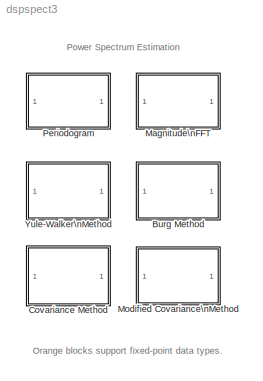
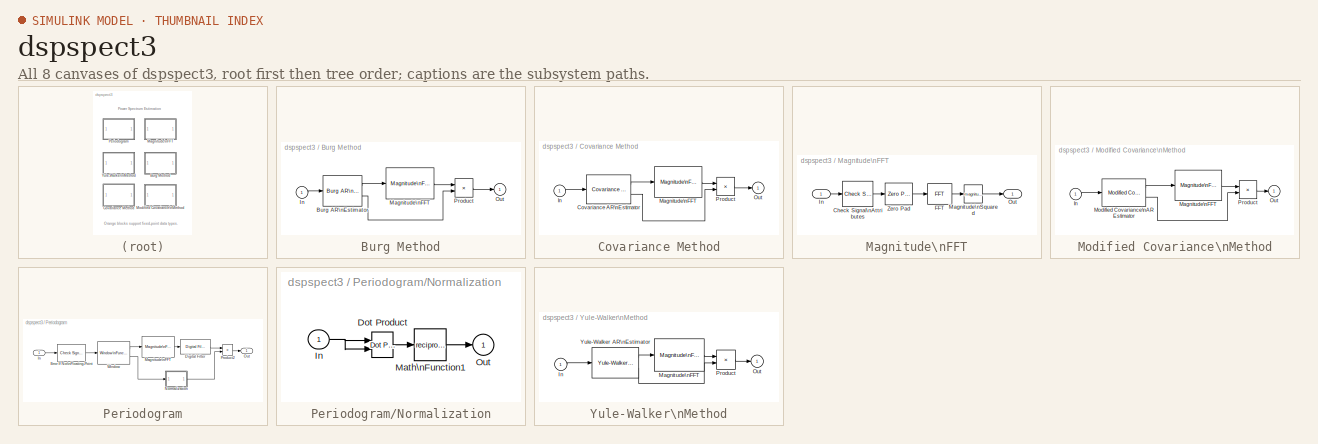
[diagram: thumbnail index - all 8 canvases of the model, root first then tree order]
MODEL dspspect3
KIND library
BLOCK [SubSystem] Burg Method
  MaskCallbackString = dspblkburgmeth2||dspblkburgmeth2|
  MaskDescription = Parametric estimation of the AR spectrum using the Burg method.
  MaskDisplay = text(-3,1.2,'Burg'); plot(-xe,0,xe,1.3,x,y)
  MaskEnableString = on,on,on,on
  MaskHelp = web(dspbhelp);
  MaskIconFrame = on
  MaskIconOpaque = on
  MaskIconRotate = none
  MaskIconUnits = autoscale
  MaskInitialization = [xe,x,y]=dspblkburgmeth2('icon');\ndspblkburgmeth2('init');\n
  MaskPromptString = Inherit estimation order from input dimensions|Estimation order:|Inherit FFT length from estimation order|FFT length:
  MaskSelfModifiable = on
  MaskStyleString = checkbox,edit,checkbox,edit
  MaskTabNameString = ,,,
  MaskToolTipString = on,on,on,on
  MaskTunableValueString = off,off,off,off
  MaskType = Burg Method
  MaskValueString = off|6|off|256
  MaskVarAliasString = ,,,
  MaskVariables = inheritOrd=@1;ord=@2;inheritFFT=@3;fftsize=@4;
  MaskVisibilityString = on,on,on,on
  Ports = [1, 1]
  TreatAsAtomicUnit = off
BLOCK [Reference] Burg Method/Burg AR\nEstimator  REF=dspparest3/Burg AR\nEstimator
  Ports = [1, 2]
  SourceBlock = dspparest3/Burg AR\nEstimator
  SourceType = Burg AR Estimator
  fcn = A
  inheritOrder = off
  ord = ord
BLOCK [Inport] Burg Method/In
  IconDisplay = Port number
BLOCK [Reference] Burg Method/Magnitude\nFFT  REF=dspspect3/Magnitude\nFFT
  Ports = [1, 1]
  ShowPortLabels = on
  SourceBlock = dspspect3/Magnitude\nFFT
  SourceType = Magnitude FFT
  fftLenInherit = off
  fftsize = fftsize
  mag_or_magsq = Magnitude squared
BLOCK [Outport] Burg Method/Out
  BusOutputAsStruct = off
  IconDisplay = Port number
  InitialOutput = 0
BLOCK [Product] Burg Method/Product
  Inputs = /*
  Ports = [2, 1]
  RndMeth = Floor
BLOCK [SubSystem] Covariance Method
  MaskCallbackString = |dspblkcovarmeth2|
  MaskDescription = Parametric estimation of the AR spectrum using the covariance method.
  MaskDisplay = text(-3,1.2,'Cov AR'); plot(-xe,0,xe,1.3,x,y)
  MaskEnableString = on,on,on
  MaskHelp = web(dspbhelp);
  MaskIconFrame = on
  MaskIconOpaque = on
  MaskIconRotate = none
  MaskIconUnits = autoscale
  MaskInitialization = [xe,x,y]=dspblkcovarmeth2('icon');\ndspblkcovarmeth2('init');\n
  MaskPromptString = Estimation order:|Inherit FFT length from estimation order|FFT length:
  MaskSelfModifiable = on
  MaskStyleString = edit,checkbox,edit
  MaskTabNameString = ,,
  MaskToolTipString = on,on,on
  MaskTunableValueString = off,on,off
  MaskType = Covariance Method
  MaskValueString = 6|off|256
  MaskVarAliasString = ,,
  MaskVariables = ord=@1;inheritFFT=@2;fftsize=@3;
  MaskVisibilityString = on,on,on
  Ports = [1, 1]
  TreatAsAtomicUnit = off
BLOCK [Reference] Covariance Method/Covariance AR\nEstimator  REF=dspparest3/Covariance AR\nEstimator
  P = ord
  Ports = [1, 2]
  ShowPortLabels = on
  SourceBlock = dspparest3/Covariance AR\nEstimator
  SourceType = Covariance AR Estimator
BLOCK [Inport] Covariance Method/In
  IconDisplay = Port number
BLOCK [Reference] Covariance Method/Magnitude\nFFT  REF=dspspect3/Magnitude\nFFT
  Ports = [1, 1]
  ShowPortLabels = on
  SourceBlock = dspspect3/Magnitude\nFFT
  SourceType = Magnitude FFT
  fftLenInherit = off
  fftsize = fftsize
  mag_or_magsq = Magnitude squared
BLOCK [Outport] Covariance Method/Out
  BusOutputAsStruct = off
  IconDisplay = Port number
  InitialOutput = 0
BLOCK [Product] Covariance Method/Product
  Inputs = /*
  Ports = [2, 1]
  RndMeth = Floor
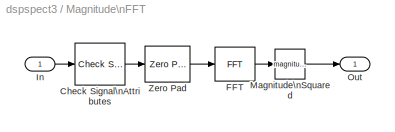
BLOCK [SubSystem] Magnitude\nFFT
  CopyFcn = dspfixptcopycallback
  MaskCallbackString = |dspblkmagfft2;|
  MaskDescription = Compute magnitude or magnitude-squared FFT of the input, with optional zero padding.
  MaskDisplay = disp(str,'texmode','on');
  MaskEnableString = on,on,on
  MaskHelp = web(dspbhelp);
  MaskIconFrame = on
  MaskIconOpaque = on
  MaskIconRotate = none
  MaskIconUnits = autoscale
  MaskInitialization = str=dspblkmagfft2('init');dspblkmagfft2('update');
  MaskPromptString = Output:|Inherit FFT length from input dimensions|FFT length:
  MaskSelfModifiable = on
  MaskStyleString = popup(Magnitude squared|Magnitude),checkbox,edit
  MaskTabNameString = ,,
  MaskToolTipString = on,on,on
  MaskTunableValueString = off,off,off
  MaskType = Magnitude FFT
  MaskValueString = Magnitude squared|off|256
  MaskVarAliasString = ,,
  MaskVariables = mag_or_magsq=@1;fftLenInherit=@2;fftsize=@3;
  MaskVisibilityString = on,on,on
  Ports = [1, 1]
  TreatAsAtomicUnit = off
BLOCK [Reference] Magnitude\nFFT/Check Signal\nAttributes  REF=dspsigattribs/Check Signal\nAttributes
  Complexity = Ignore
  DatatypeCheckMethod = Ignore
  DatatypeGeneral = Boolean
  Dimensions = Row vector (2-D)
  DimsCheckMethod = Is...
  DtypeFixedSpecific = Any fixed-point
  DtypeFloatSpecific = Any floating-point
  DtypeIntSpecific = Any integer
  Frame = Sample-based
  Ports = [1, 1]
  SampleMode = Ignore
  ShowPortLabels = on
  SigAttribCheckMethod = Matches attributes exactly
  SourceBlock = dspsigattribs/Check Signal\nAttributes
  SourceType = Check Signal Attributes
BLOCK [Reference] Magnitude\nFFT/FFT  REF=dspxfrm3/FFT
  BitRevOrder = off
  CompMethod = Table lookup
  Ports = [1, 1]
  SkipNorm = on
  SourceBlock = dspxfrm3/FFT
  SourceType = FFT
  TableOpt = Speed
  accumFracLength = 30
  accumMode = Inherit via internal rule
  accumWordLength = 32
  additionalParams = off
  allowOverrides = on
  firstCoeffFracLength = 15
  firstCoeffMode = Same word length as input
  firstCoeffWordLength = 16
  outputFracLength = 15
  outputMode = Inherit via internal rule
  outputWordLength = 16
  overflowMode = off
  prodOutputFracLength = 30
  prodOutputMode = Inherit via internal rule
  prodOutputWordLength = 32
  roundingMode = Floor
BLOCK [Inport] Magnitude\nFFT/In
  IconDisplay = Port number
BLOCK [Math] Magnitude\nFFT/Magnitude\nSquared
  Operator = magnitude^2
  OutDataTypeMode = Inherit via internal rule
  Ports = [1, 1]
  ShowAdditionalParam = on
BLOCK [Outport] Magnitude\nFFT/Out
  BusOutputAsStruct = off
  IconDisplay = Port number
BLOCK [Reference] Magnitude\nFFT/Zero Pad  REF=dspsigops/Zero Pad
  Ports = [1, 1]
  SourceBlock = dspsigops/Zero Pad
  SourceType = Zero Pad
  numOutCols = 1
  numOutRows = fftsize
  padNumOutColsSpecMethod = User-specified
  padNumOutRowsSpecMethod = User-specified
  padSigAt = End
  trunc_flag = None
  zpadAlong = Columns
BLOCK [SubSystem] Modified Covariance\nMethod
  MaskCallbackString = |dspblkmodcovmeth2|
  MaskDescription = Parametric estimation of the AR spectrum using the modified covariance method.
  MaskDisplay = text(-3,1.2,'MCov AR'); plot(-xe,0,xe,1.3,x,y)
  MaskEnableString = on,on,on
  MaskHelp = web(dspbhelp);
  MaskIconFrame = on
  MaskIconOpaque = on
  MaskIconRotate = none
  MaskIconUnits = autoscale
  MaskInitialization = [xe,x,y]=dspblkmodcovmeth2('icon');\ndspblkmodcovmeth2('init');
  MaskPromptString = Estimation order:|Inherit FFT length from estimation order|FFT length:
  MaskSelfModifiable = on
  MaskStyleString = edit,checkbox,edit
  MaskTabNameString = ,,
  MaskToolTipString = on,on,on
  MaskTunableValueString = off,on,off
  MaskType = Modified Covariance Method
  MaskValueString = 6|off|256
  MaskVarAliasString = ,,
  MaskVariables = ord=@1;inheritFFT=@2;fftsize=@3;
  MaskVisibilityString = on,on,on
  Ports = [1, 1]
  TreatAsAtomicUnit = off
BLOCK [Inport] Modified Covariance\nMethod/In
  IconDisplay = Port number
BLOCK [Reference] Modified Covariance\nMethod/Magnitude\nFFT  REF=dspspect3/Magnitude\nFFT
  Ports = [1, 1]
  ShowPortLabels = on
  SourceBlock = dspspect3/Magnitude\nFFT
  SourceType = Magnitude FFT
  fftLenInherit = off
  fftsize = fftsize
  mag_or_magsq = Magnitude squared
BLOCK [Reference] Modified Covariance\nMethod/Modified Covariance\nAR Estimator  REF=dspparest3/Modified Covariance\nAR Estimator
  P = ord
  Ports = [1, 2]
  ShowPortLabels = on
  SourceBlock = dspparest3/Modified Covariance\nAR Estimator
  SourceType = Modified Covariance AR Estimator
BLOCK [Outport] Modified Covariance\nMethod/Out
  BusOutputAsStruct = off
  IconDisplay = Port number
  InitialOutput = 0
BLOCK [Product] Modified Covariance\nMethod/Product
  Inputs = /*
  Ports = [2, 1]
  RndMeth = Floor
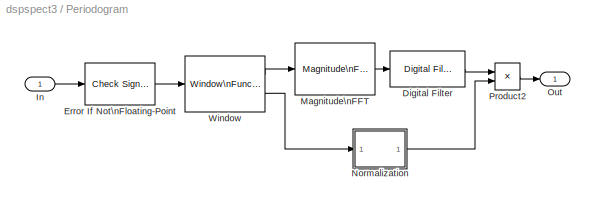
BLOCK [SubSystem] Periodogram
  MaskCallbackString = dspblkshorttimefft2||||dspblkshorttimefft2||
  MaskDescription = Nonparametric spectral estimation using the Periodogram method.
  MaskDisplay = text(-3,1.15,'Periodogram');\nplot((-xe),0,xe,1.3,x,y)\n
  MaskEnableString = on,off,off,on,on,on,on
  MaskHelp = web(dspbhelp);
  MaskIconFrame = on
  MaskIconOpaque = on
  MaskIconRotate = none
  MaskIconUnits = autoscale
  MaskInitialization = [x,y,xe]=dspblkshorttimefft2('icon');\ndspblkshorttimefft2('init');\n
  MaskPromptString = Window type:|Stopband attenuation in dB:|Beta:|Window sampling:|Inherit FFT length from input dimensions|FFT length:|Number of spectral averages:
  MaskSelfModifiable = on
  MaskStyleString = popup(Bartlett|Blackman|Boxcar|Chebyshev|Hamming|Hann|Hanning|Kaiser|Triang),edit,edit,popup(Symmetric|Periodic),checkbox,edit,edit
  MaskTabNameString = ,,,,,,
  MaskToolTipString = on,on,on,on,on,on,on
  MaskTunableValueString = on,on,on,on,off,off,off
  MaskType = Periodogram
  MaskValueString = Hamming|50|5|Symmetric|off|256|4
  MaskVarAliasString = ,,,,,,
  MaskVariables = wintype=@1;Rs=@2;beta=@3;winsamp=@4;inheritFFT=@5;fftsize=@6;navg=@7;
  MaskVisibilityString = on,on,on,on,on,on,on
  Ports = [1, 1]
  TreatAsAtomicUnit = off
BLOCK [Reference] Periodogram/Digital Filter  REF=dsparch4/Digital Filter
  AllPoleFiltStruct = Direct form
  BiQuadCoeffs = [1 0.3 0.4 1 0.1 0.2]
  CoeffSource = Specify via dialog
  DenCoeffs = [1 0.1]
  FIRFiltStruct = Direct form
  FiltPerSampPopup = One filter per frame
  IC = 0
  ICden = 0
  ICnum = 0
  IIRFiltStruct = Direct form II transposed
  LatticeCoeffs = [0.2 0.4]
  NumCoeffs = ones(navg,1)/navg
  Ports = [1, 1]
  SourceBlock = dsparch4/Digital Filter
  SourceType = Digital Filter
  TypePopup = FIR (all zeros)
  accumFracLength = 30
  accumMode = Same as product output
  accumWordLength = 32
  additionalParams = off
  allowOverrides = on
  denIgnore = on
  firstCoeffFracLength = 15
  firstCoeffMode = Same as input
  firstCoeffWordLength = 16
  memoryFracLength = 15
  memoryMode = Same as accumulator
  memoryWordLength = 16
  outputFracLength = 15
  outputMode = Same as accumulator
  outputWordLength = 16
  overflowMode = off
  prodOutputFracLength = 30
  prodOutputMode = Same as input
  prodOutputWordLength = 32
  roundingMode = Floor
  secondCoeffFracLength = 15
  secondCoeffMode = Same as numerator
  secondCoeffWordLength = 16
  showAcc = off
  showCoeff = off
  showMem = off
  showMpy = off
  showOut = off
  thirdCoeffFracLength = 15
  thirdCoeffMode = Same as input
  thirdCoeffWordLength = 16
BLOCK [Reference] Periodogram/Error If Not\nFloating-Point  REF=dspsigattribs/Check Signal\nAttributes
  Complexity = Ignore
  DatatypeCheckMethod = Is...
  DatatypeGeneral = Floating-point
  Dimensions = 1-D
  DimsCheckMethod = Ignore
  DtypeFixedSpecific = Any fixed-point
  DtypeFloatSpecific = Any floating-point
  DtypeIntSpecific = Any integer
  Frame = Ignore
  Ports = [1, 1]
  SampleMode = Ignore
  ShowPortLabels = on
  SigAttribCheckMethod = Does not match attributes exactly
  SourceBlock = dspsigattribs/Check Signal\nAttributes
  SourceType = Check Signal Attributes
BLOCK [Inport] Periodogram/In
  IconDisplay = Port number
BLOCK [Reference] Periodogram/Magnitude\nFFT  REF=dspspect3/Magnitude\nFFT
  Ports = [1, 1]
  ShowPortLabels = on
  SourceBlock = dspspect3/Magnitude\nFFT
  SourceType = Magnitude FFT
  fftLenInherit = off
  fftsize = fftsize
  mag_or_magsq = Magnitude squared
BLOCK [SubSystem] Periodogram/Normalization
  Ports = [1, 1]
  TreatAsAtomicUnit = off
BLOCK [Reference] Periodogram/Normalization/Dot Product  REF=simulink/Math\nOperations/Dot Product
  DoSatur = off
  InputSameDT = off
  LockScale = off
  OutDataType = sfix(16)
  OutScaling = 2^-10
  OutputDataTypeScalingMode = Inherit via internal rule
  Ports = [2, 1]
  RndMeth = Floor
  SourceBlock = simulink/Math\nOperations/Dot Product
  SourceType = Dot Product
BLOCK [Inport] Periodogram/Normalization/In
  IconDisplay = Port number
BLOCK [Math] Periodogram/Normalization/Math\nFunction1
  Operator = reciprocal
  Ports = [1, 1]
BLOCK [Outport] Periodogram/Normalization/Out
  BusOutputAsStruct = off
  IconDisplay = Port number
BLOCK [Outport] Periodogram/Out
  BusOutputAsStruct = off
  IconDisplay = Port number
  InitialOutput = 0
BLOCK [Product] Periodogram/Product2
  Inputs = **
  Ports = [2, 1]
  RndMeth = Floor
BLOCK [Reference] Periodogram/Window  REF=dspsigops/Window\nFunction
  N = 64
  OptParams = off
  Ports = [1, 2]
  Rs = Rs
  SourceBlock = dspsigops/Window\nFunction
  SourceType = Window Function
  UserParams = {1.0}
  UserWindow = hamming
  additionalParams = on
  allowOverrides = on
  beta = beta
  dataType = double
  firstCoeffFracLength = 15
  firstCoeffMode = Same word length as input
  firstCoeffWordLength = 16
  fracBitsMode = Best precision
  numFracBits = 15
  outputFracLength = 15
  outputMode = Same as input
  outputWordLength = 16
  overflowMode = off
  prodOutputFracLength = 15
  prodOutputMode = Same as input
  prodOutputWordLength = 16
  roundingMode = Floor
  sampmode = Continuous
  samptime = 1
  udDataType = sfix(16)
  winmode = Generate and apply window
  winsamp = Symmetric
  wintype = Hamming
  wordLen = 16
BLOCK [SubSystem] Yule-Walker\nMethod
  MaskCallbackString = dspblkyulewalkmeth2||dspblkyulewalkmeth2|
  MaskDescription = Parametric estimation of the AR spectrum using the autocorrelation (LPC) method.
  MaskDisplay = text(-3,1.2,'Yule AR'); plot(-xe,0,xe,1.3,x,y)
  MaskEnableString = on,on,on,on
  MaskHelp = web(dspbhelp);
  MaskIconFrame = on
  MaskIconOpaque = on
  MaskIconRotate = none
  MaskIconUnits = autoscale
  MaskInitialization = [xe,x,y]=dspblkyulewalkmeth2('icon');\ndspblkyulewalkmeth2('init');\n
  MaskPromptString = Inherit estimation order from input dimensions|Estimation order:|Inherit FFT length from estimation order|FFT length:
  MaskSelfModifiable = on
  MaskStyleString = checkbox,edit,checkbox,edit
  MaskTabNameString = ,,,
  MaskToolTipString = on,on,on,on
  MaskTunableValueString = off,off,off,off
  MaskType = Yule-Walker Method
  MaskValueString = off|6|off|256
  MaskVarAliasString = ,,,
  MaskVariables = inheritOrd=@1;ord=@2;inheritFFT=@3;fftsize=@4;
  MaskVisibilityString = on,on,on,on
  Ports = [1, 1]
  TreatAsAtomicUnit = off
BLOCK [Inport] Yule-Walker\nMethod/In
  IconDisplay = Port number
BLOCK [Reference] Yule-Walker\nMethod/Magnitude\nFFT  REF=dspspect3/Magnitude\nFFT
  Ports = [1, 1]
  ShowPortLabels = on
  SourceBlock = dspspect3/Magnitude\nFFT
  SourceType = Magnitude FFT
  fftLenInherit = off
  fftsize = fftsize
  mag_or_magsq = Magnitude squared
BLOCK [Outport] Yule-Walker\nMethod/Out
  BusOutputAsStruct = off
  IconDisplay = Port number
  InitialOutput = 0
BLOCK [Product] Yule-Walker\nMethod/Product
  Inputs = /*
  Ports = [2, 1]
  RndMeth = Floor
BLOCK [Reference] Yule-Walker\nMethod/Yule-Walker AR\nEstimator  REF=dspparest3/Yule-Walker AR\nEstimator
  Ports = [1, 2]
  ShowPortLabels = on
  SourceBlock = dspparest3/Yule-Walker AR\nEstimator
  SourceType = Yule-Walker AR Estimator
  inheritOrder = off
  ord = ord
  ywArOutType = A
ANNOTATION (root): Orange blocks support fixed-point data types.
ANNOTATION (root): Power Spectrum Estimation
LINE Burg Method/Burg AR\nEstimator:1 -> Burg Method/Magnitude\nFFT:1
LINE Burg Method/Burg AR\nEstimator:2 -> Burg Method/Product:2
LINE Burg Method/In:1 -> Burg Method/Burg AR\nEstimator:1
LINE Burg Method/Magnitude\nFFT:1 -> Burg Method/Product:1
LINE Burg Method/Product:1 -> Burg Method/Out:1
LINE Covariance Method/Covariance AR\nEstimator:1 -> Covariance Method/Magnitude\nFFT:1
LINE Covariance Method/Covariance AR\nEstimator:2 -> Covariance Method/Product:2
LINE Covariance Method/In:1 -> Covariance Method/Covariance AR\nEstimator:1
LINE Covariance Method/Magnitude\nFFT:1 -> Covariance Method/Product:1
LINE Covariance Method/Product:1 -> Covariance Method/Out:1
LINE Magnitude\nFFT/Check Signal\nAttributes:1 -> Magnitude\nFFT/Zero Pad:1
LINE Magnitude\nFFT/FFT:1 -> Magnitude\nFFT/Magnitude\nSquared:1
LINE Magnitude\nFFT/In:1 -> Magnitude\nFFT/Check Signal\nAttributes:1
LINE Magnitude\nFFT/Magnitude\nSquared:1 -> Magnitude\nFFT/Out:1
LINE Magnitude\nFFT/Zero Pad:1 -> Magnitude\nFFT/FFT:1
LINE Modified Covariance\nMethod/In:1 -> Modified Covariance\nMethod/Modified Covariance\nAR Estimator:1
LINE Modified Covariance\nMethod/Magnitude\nFFT:1 -> Modified Covariance\nMethod/Product:1
LINE Modified Covariance\nMethod/Modified Covariance\nAR Estimator:1 -> Modified Covariance\nMethod/Magnitude\nFFT:1
LINE Modified Covariance\nMethod/Modified Covariance\nAR Estimator:2 -> Modified Covariance\nMethod/Product:2
LINE Modified Covariance\nMethod/Product:1 -> Modified Covariance\nMethod/Out:1
LINE Periodogram/Digital Filter:1 -> Periodogram/Product2:1
LINE Periodogram/Error If Not\nFloating-Point:1 -> Periodogram/Window:1
LINE Periodogram/In:1 -> Periodogram/Error If Not\nFloating-Point:1
LINE Periodogram/Magnitude\nFFT:1 -> Periodogram/Digital Filter:1
LINE Periodogram/Normalization/Dot Product:1 -> Periodogram/Normalization/Math\nFunction1:1
NET Periodogram/Normalization/In:1 -> Periodogram/Normalization/Dot Product:1, Periodogram/Normalization/Dot Product:2
LINE Periodogram/Normalization/Math\nFunction1:1 -> Periodogram/Normalization/Out:1
LINE Periodogram/Normalization:1 -> Periodogram/Product2:2
LINE Periodogram/Product2:1 -> Periodogram/Out:1
LINE Periodogram/Window:1 -> Periodogram/Magnitude\nFFT:1
LINE Periodogram/Window:2 -> Periodogram/Normalization:1
LINE Yule-Walker\nMethod/In:1 -> Yule-Walker\nMethod/Yule-Walker AR\nEstimator:1
LINE Yule-Walker\nMethod/Magnitude\nFFT:1 -> Yule-Walker\nMethod/Product:1
LINE Yule-Walker\nMethod/Product:1 -> Yule-Walker\nMethod/Out:1
LINE Yule-Walker\nMethod/Yule-Walker AR\nEstimator:1 -> Yule-Walker\nMethod/Magnitude\nFFT:1
LINE Yule-Walker\nMethod/Yule-Walker AR\nEstimator:2 -> Yule-Walker\nMethod/Product:2
note: NET lines group one-source signal fan-out (src -> all destinations, sorted); 1:1 wires keep LINE
